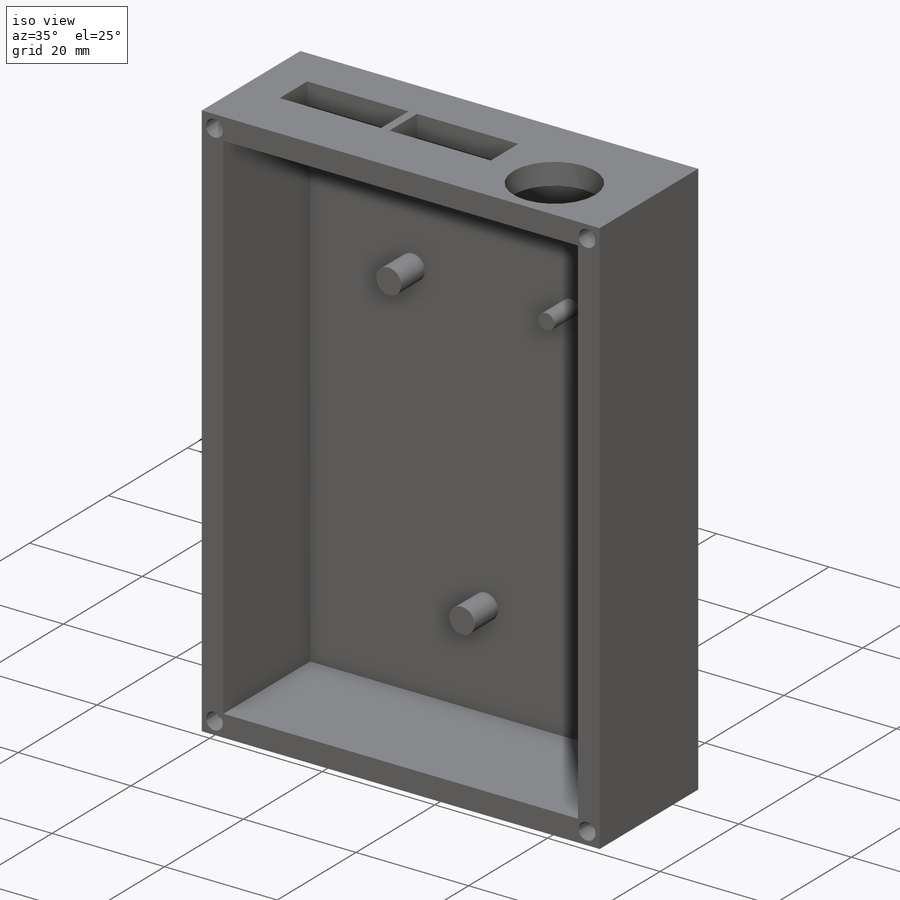
[diagram: iso view]
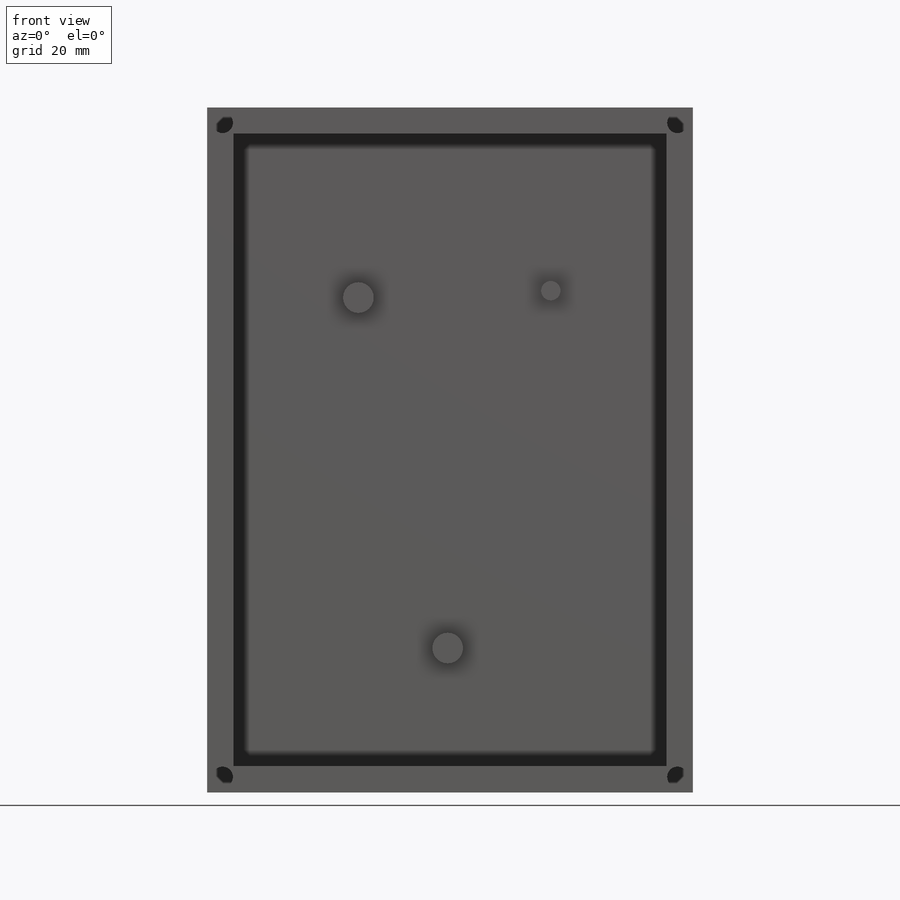
[diagram: front view]
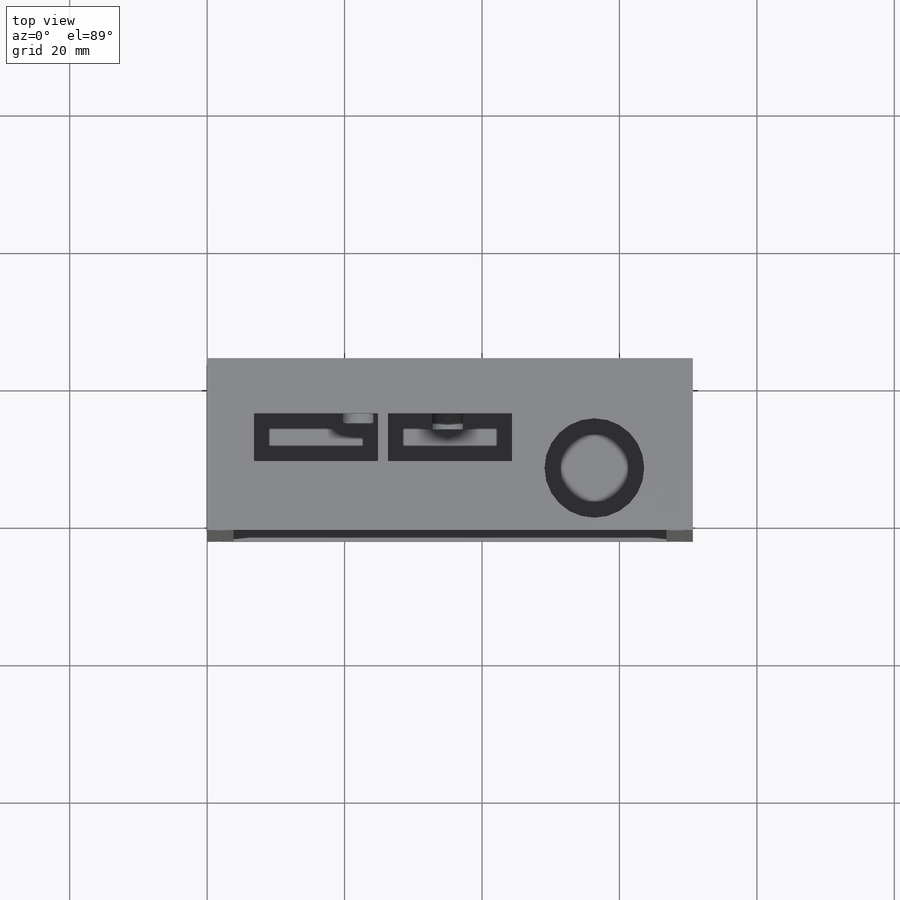
[diagram: top view]
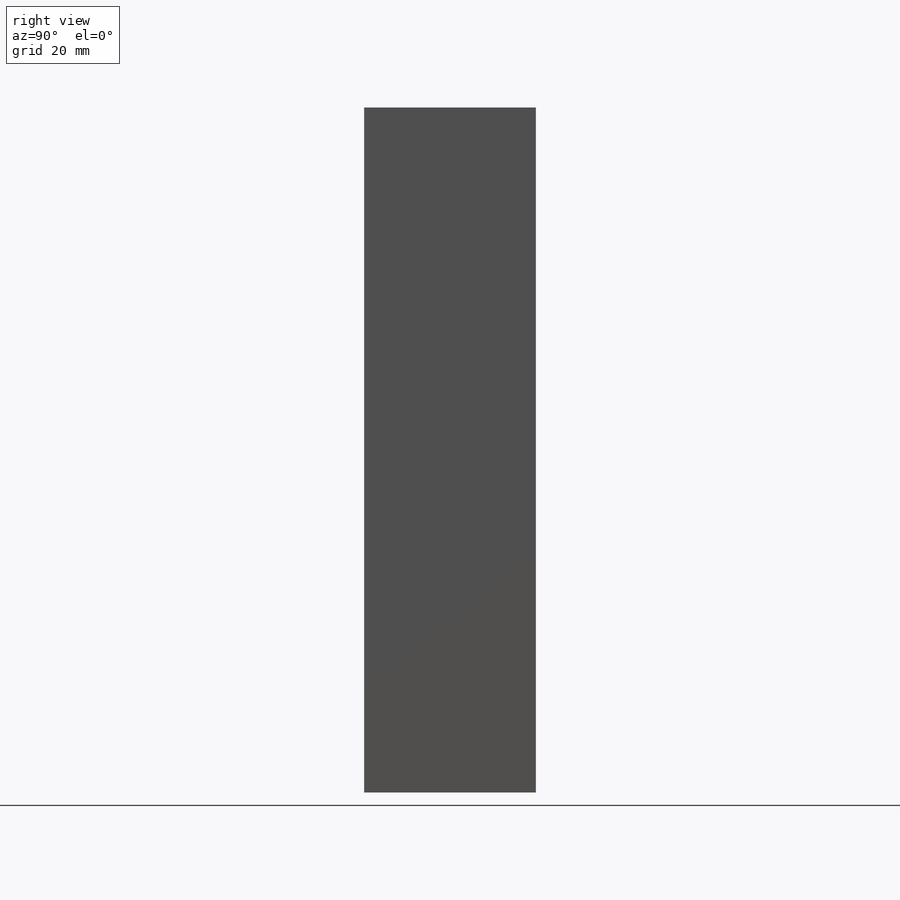
[diagram: right view]
SOLIDWORKS PART (.sldprt)
format: sldprt  version: not decoded by parser v0  size: 262,144 bytes
history: native  units: mm
features: sketch x5, extrude x3, cut_extrude x2, material x1 (+11 scaffold rows collapsed)
feature tree (22):
  scaffold x11  (default folders/planes/origin — collapsed)
  material  "ABS"
  sketch  "Sketch1"  dims[c1.D5=2.25mm c1.D10=3.0mm c1.D13=3.0mm c1.D16=3.0mm c1.D17=3.0mm c1.D20=4.0mm c1.D25=2.0mm c1.D26=7.25mm c1.D27=~6.056528mm c1.D1=24.13mm c1.D2=30.099mm c1.D3=3.048mm c1.D4=2.921mm c1.D6=21.336mm c1.D7=2.921mm c2.D3=3.048mm c2.D4=2.921mm c2.D8=3.048mm c2.D9=27.051mm c2.D11=~13.09497mm c2.D12=~6.908038mm c2.D14=~18.008092mm c2.D15=~13.09497mm c2.D17=4.0mm c2.D18=0.75mm c2.D19=0.75mm c2.D21=~11.854942mm c2.D22=~11.107928mm c2.D23=~13.647928mm c3.D21=~11.107928mm c3.D22=~11.854942mm c3.D24=~14.394942mm c3.D27=0.5mm c3.D2=63.0mm c3.D3=94.5mm]
  extrude  "Boss-Extrude1"  Depth=3.25mm
  extrude  "Boss-Extrude2"  [1 undecoded]
  sketch  "Sketch1<21>"  dims[D1=3.0mm]
  extrude  "Boss-Extrude4"  [1 undecoded]
  sketch  "Sketch1<23>"  dims[D1=19.25mm]
  sketch  "Sketch3"  dims[c1.D1=13.0mm c1.D3=14.5mm c2.D1=10.25mm c2.D2=10.5mm c2.D4=3.0mm c2.D5=2.25mm c2.D6=18.0mm c2.D7=18.0mm c2.D8=7.0mm c2.D9=1.5mm]
  cut_extrude  "Cut-Extrude1"  [1 undecoded]
  sketch  "Sketch4"  dims[D1=18.0mm D2=7.0mm D3=5.25mm D4=11.75mm]
  cut_extrude  "Cut-Extrude2"  [1 undecoded]
decode coverage: 6 of 10 modeling features carry decoded parameters
note: ~ marks probable driven/reference dimensions
note: 4 parameter values undecoded
summary: no parameter record found for 4 features
note: suppression state not decoded; provenance and decode notes live in map.json
